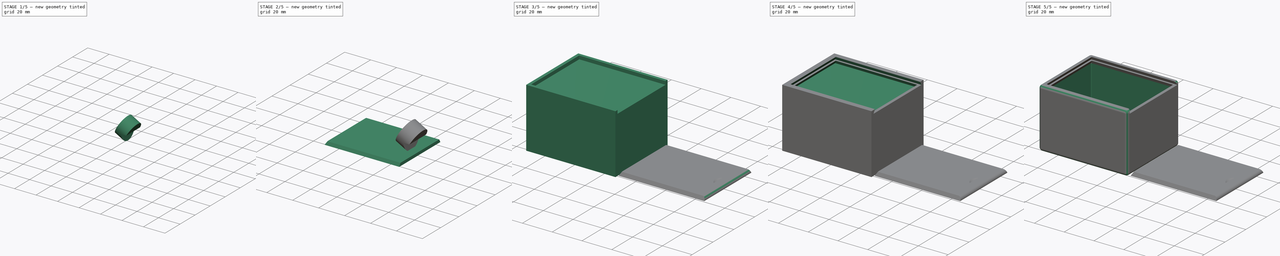
[diagram: build sequence overview — one tinted view per stage of 5, left to right]
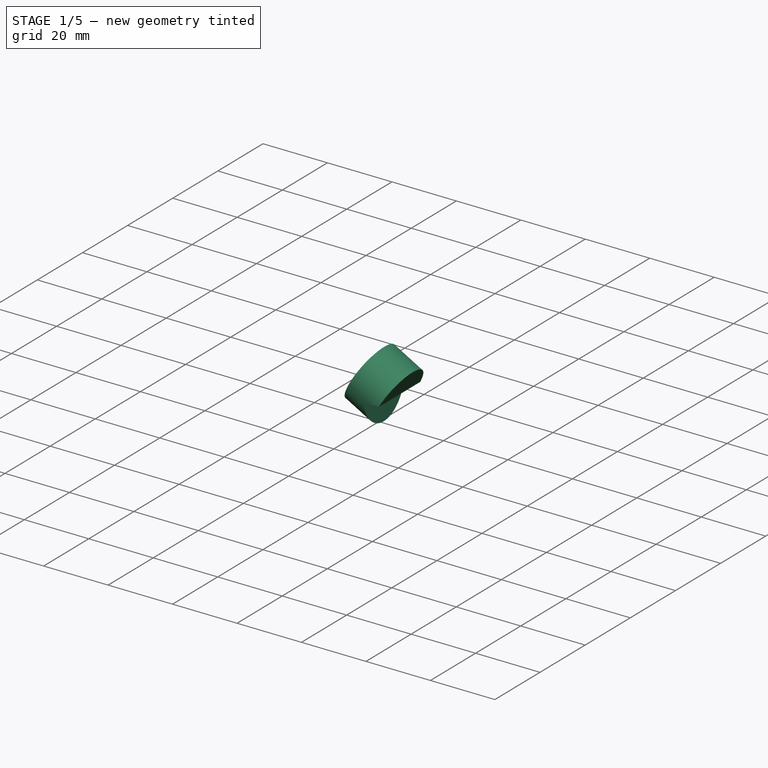
[diagram: stage 1 of 5 — iso view after this stage's code; geometry added in this stage tinted green]
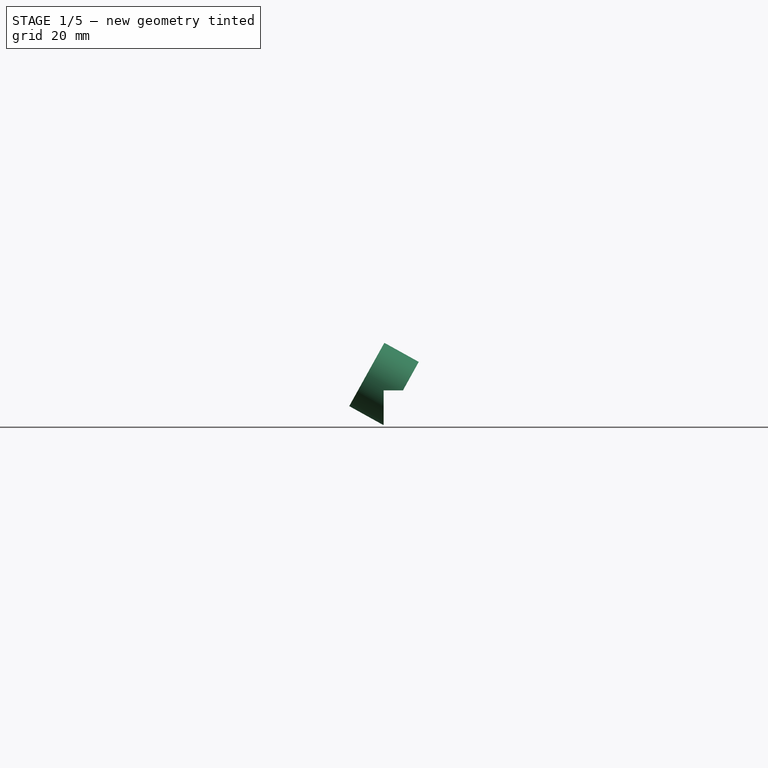
[diagram: stage 1 of 5 — front view after this stage's code; geometry added in this stage tinted green]
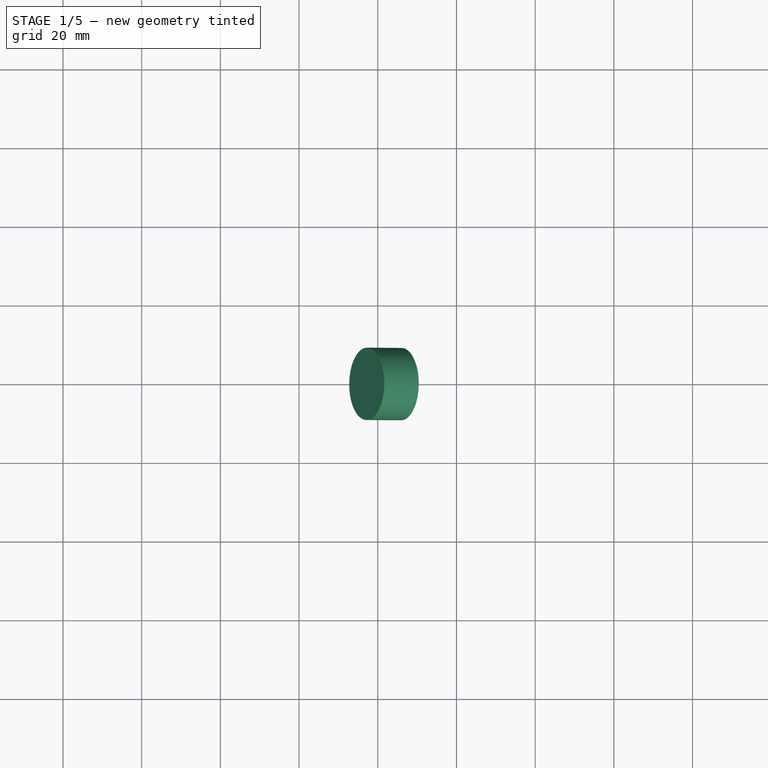
[diagram: stage 1 of 5 — top view after this stage's code; geometry added in this stage tinted green]
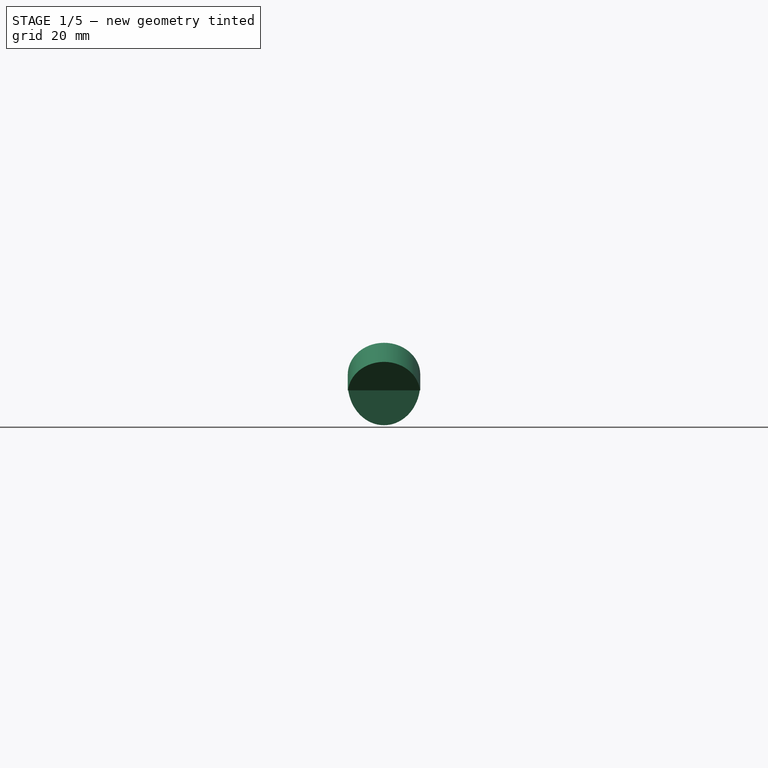
[diagram: stage 1 of 5 — right view after this stage's code; geometry added in this stage tinted green]
FCSTD DOCUMENT  (FreeCAD 0.19R24267 +99 (Git))
Label: MinimalSlidingBoxWithInsideOverhangs
License: All rights reserved
LicenseURL: http://en.wikipedia.org/wiki/All_rights_reserved
objects: Sketcher::SketchObject×6, PartDesign::Fillet×4, PartDesign::Pocket×3, PartDesign::Draft×3, PartDesign::Pad×2, PartDesign::Body×2, Part::Cut×2, Spreadsheet::Sheet×1, Part::Cylinder×1, Part::Box×1
note: 36 computed .brp shape members not serialized (recipe doc carries the construction recipe); baked Part::Feature solids carry a one-line shape summary decoded from their .brp

FEATURE [PartDesign::Body] Body001  label="LidBody"
  Group = -> [Sketch004,Pad001,Draft002,Fillet001,Fillet003]
  Origin = -> Origin001
  Tip = -> Fillet003
FEATURE [Part::Cylinder] Cylinder
  Angle = 360
  AttacherType = Attacher::AttachEngine3D
  Height = 10
  Placement = pos=(85.9536,0,9.2) rot=(0,-1,0;1.06465rad)
  Radius = 9.2
  expr: .Placement.Base.z = 4 * (Spreadsheet.thinWall + Spreadsheet.maxSliderGap)
  expr: Radius = 4 * (Spreadsheet.thinWall + Spreadsheet.maxSliderGap)
  expr: .Placement.Base.x = Spreadsheet.boxX / 2 + Spreadsheet.maxSliderGap + Spreadsheet.boxX - Spreadsheet.thinWall - Spreadsheet.maxSliderGap / cos(Spreadsheet.overhangAngle) - Spreadsheet.thinWall
FEATURE [Part::Box] Box  label="Cube"
  AttacherType = Attacher::AttachEngine3D
  Height = 10
  Length = 10
  Placement = pos=(81.4933,-9.2,0) rot=(0,0,1;0rad)
  Width = 18.4
  expr: .Placement.Base.x = Spreadsheet.boxX / 2 + Spreadsheet.maxSliderGap + Spreadsheet.boxX - Spreadsheet.thinWall - Spreadsheet.maxSliderGap / cos(Spreadsheet.overhangAngle) - Spreadsheet.thinWall - cos(61) * 4 * (Spreadsheet.thinWall + Spreadsheet.maxSliderGap)
  expr: .Placement.Base.y = -4 * (Spreadsheet.thinWall + Spreadsheet.maxSliderGap)
  expr: Width = 2 * 4 * (Spreadsheet.thinWall + Spreadsheet.maxSliderGap)
FEATURE [Part::Cut] Cut
  Base = -> Cylinder
  Tool = -> Box
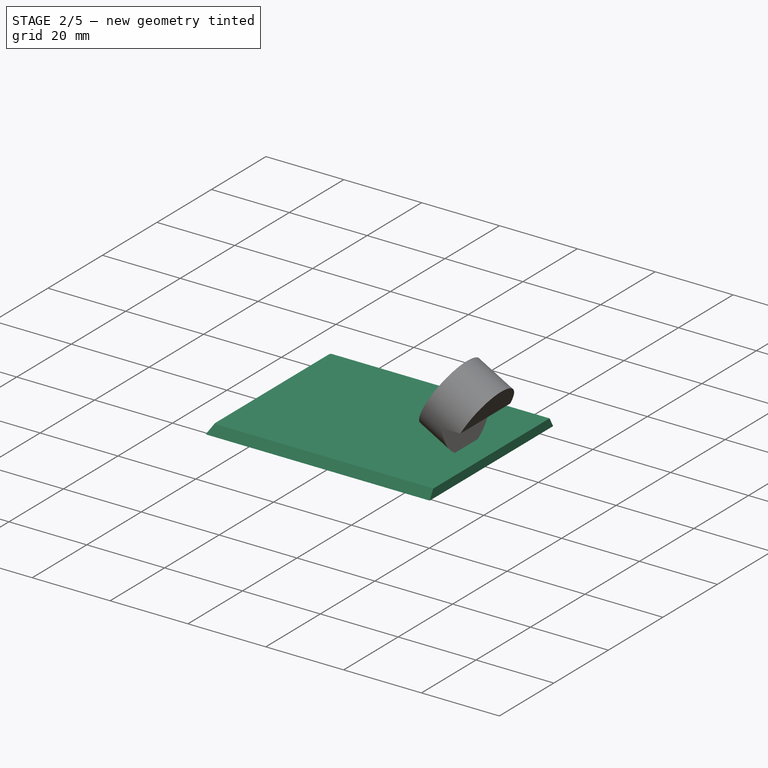
[diagram: stage 2 of 5 — iso view after this stage's code; geometry added in this stage tinted green]
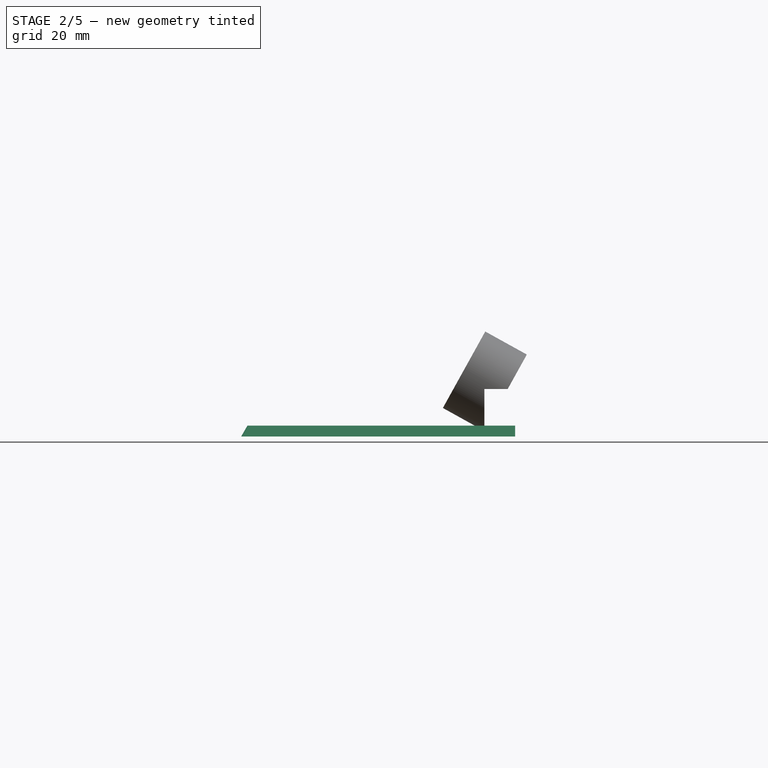
[diagram: stage 2 of 5 — front view after this stage's code; geometry added in this stage tinted green]
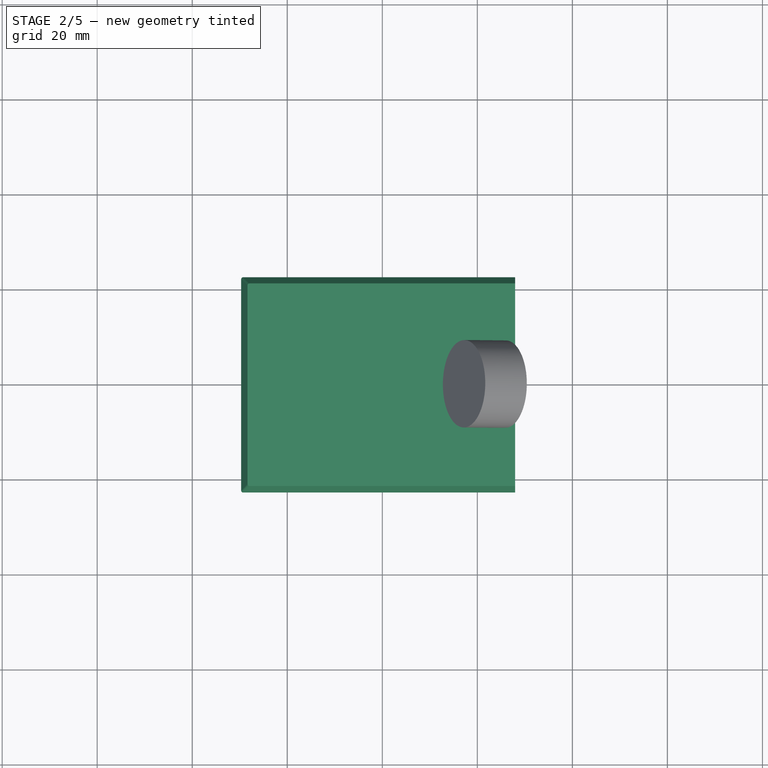
[diagram: stage 2 of 5 — top view after this stage's code; geometry added in this stage tinted green]
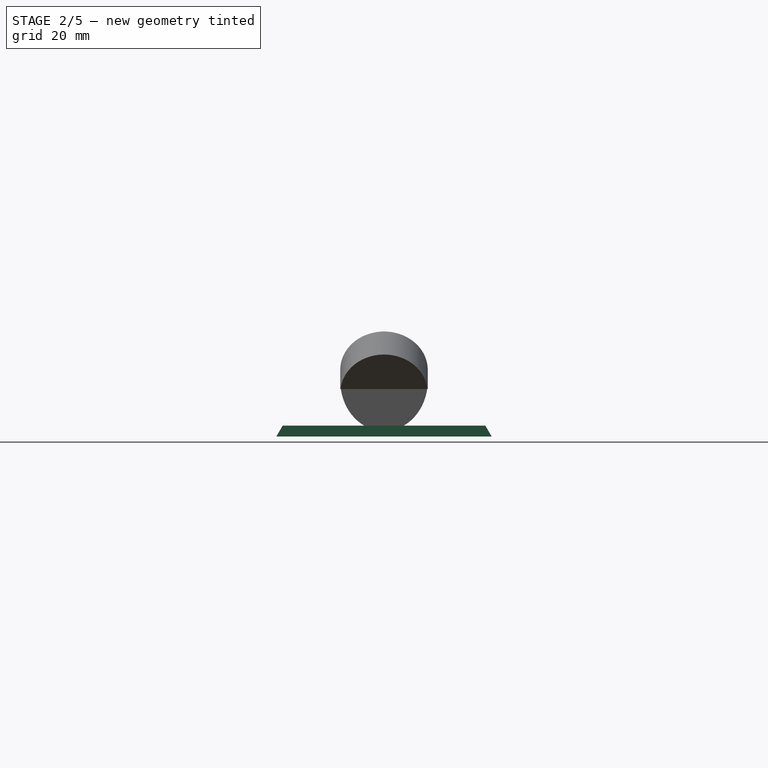
[diagram: stage 2 of 5 — right view after this stage's code; geometry added in this stage tinted green]
FEATURE [Sketcher::SketchObject] Sketch004  label="SliderSketch"
  FullyConstrained = true
  MapMode = 5
  Support = -> [XY_Plane001]
  expr: Constraints[2] = Spreadsheet.boxX / 2 + Spreadsheet.maxSliderGap
  expr: Constraints[12] = Spreadsheet.boxY - 2 * Spreadsheet.thinWall - 2 * Spreadsheet.maxSliderGap / cos(Spreadsheet.overhangAngle)
  expr: Constraints[13] = Spreadsheet.boxX - Spreadsheet.thinWall - Spreadsheet.maxSliderGap / cos(Spreadsheet.overhangAngle)
  sketch-geometry (5):
    g0: LineSegment StartX=0 StartY=0 StartZ=0 EndX=30.3 EndY=0 EndZ=0
    g1: LineSegment StartX=30.3 StartY=22.6536 StartZ=0 EndX=87.9536 EndY=22.6536 EndZ=0
    g2: LineSegment StartX=87.9536 StartY=22.6536 StartZ=0 EndX=87.9536 EndY=-22.6536 EndZ=0
    g3: LineSegment StartX=87.9536 StartY=-22.6536 StartZ=0 EndX=30.3 EndY=-22.6536 EndZ=0
    g4: LineSegment StartX=30.3 StartY=-22.6536 StartZ=0 EndX=30.3 EndY=22.6536 EndZ=0
  constraints (14):
    c: Coincident(g0,g-1)
    c: Horizontal(g0)
    c: DistanceX(g0,g0) = 30.3
    c: Coincident(g1,g2)
    c: Coincident(g2,g3)
    c: Coincident(g3,g4)
    c: Coincident(g4,g1)
    c: Horizontal(g1)
    c: Horizontal(g3)
    c: Vertical(g2)
    c: Vertical(g4)
    c: Symmetric(g1,g3,g0)
    c: DistanceY(g4,g4) = 45.3072
    c: DistanceX(g1,g1) = 57.6536
FEATURE [PartDesign::Pad] Pad001  label="SliderPad"
  Direction = (1,1,1)
  Length = 2.3
  Length2 = 100
  Profile = -> Sketch004
  Type = 0
  expr: Length = Spreadsheet.thinWall + Spreadsheet.maxSliderGap
FEATURE [PartDesign::Draft] Draft002  label="DraftSliderSides"
  Angle = 30
  Base = -> Pad001 [Face4,Face1,Face3]
  BaseFeature = -> Pad001
  NeutralPlane = -> Pad001 [Face5]
  Reversed = true
  SupportTransform = false
  expr: Angle = Spreadsheet.overhangAngle
FEATURE [PartDesign::Fillet] Fillet001  label="SliderAntiThreadingFillet"
  Base = -> Draft002 [Edge1,Edge8]
  BaseFeature = -> Draft002
  Radius = 0.5
  SupportTransform = false
  expr: Radius = Spreadsheet.antiThreadingRadius
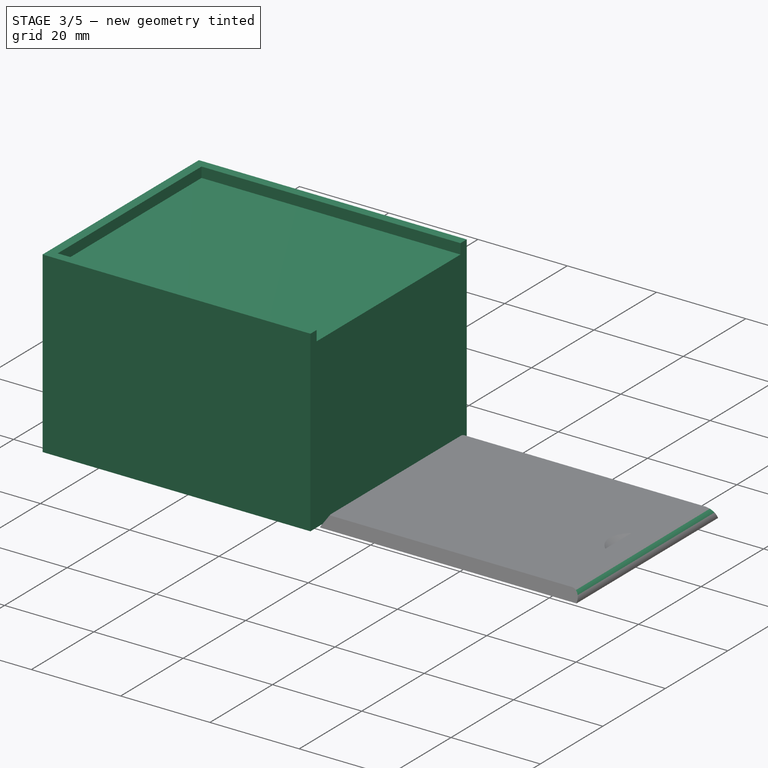
[diagram: stage 3 of 5 — iso view after this stage's code; geometry added in this stage tinted green]
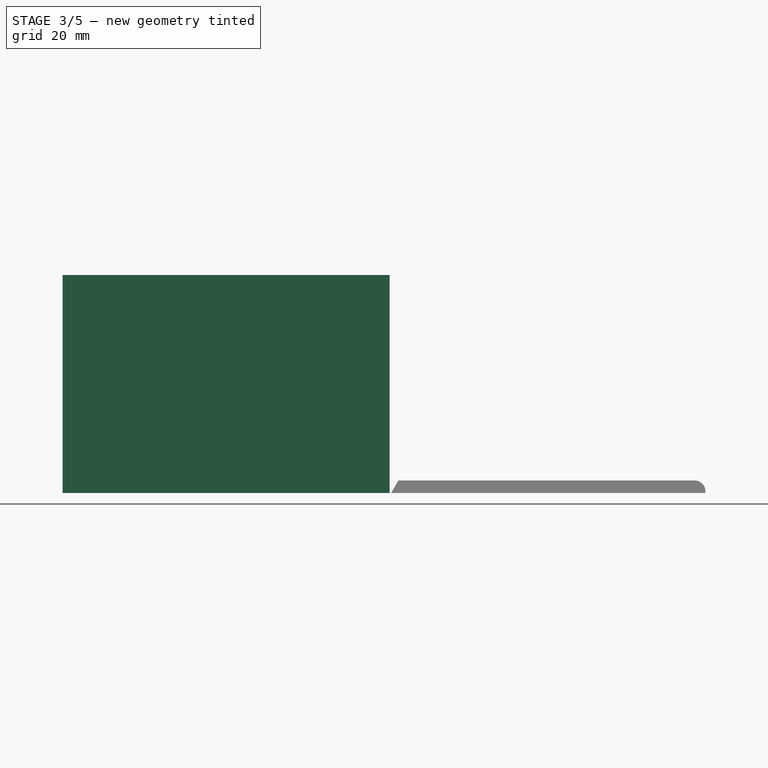
[diagram: stage 3 of 5 — front view after this stage's code; geometry added in this stage tinted green]
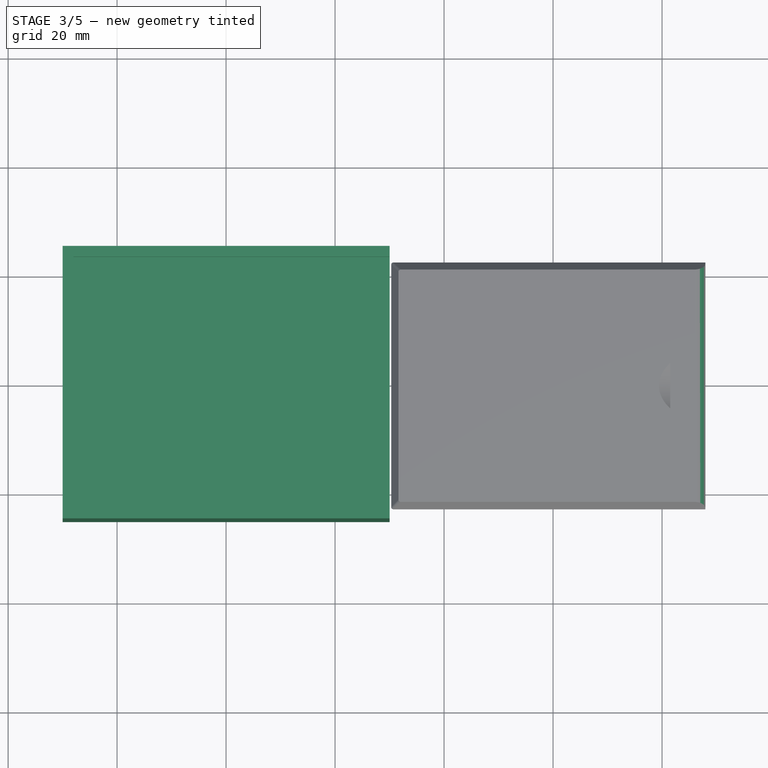
[diagram: stage 3 of 5 — top view after this stage's code; geometry added in this stage tinted green]
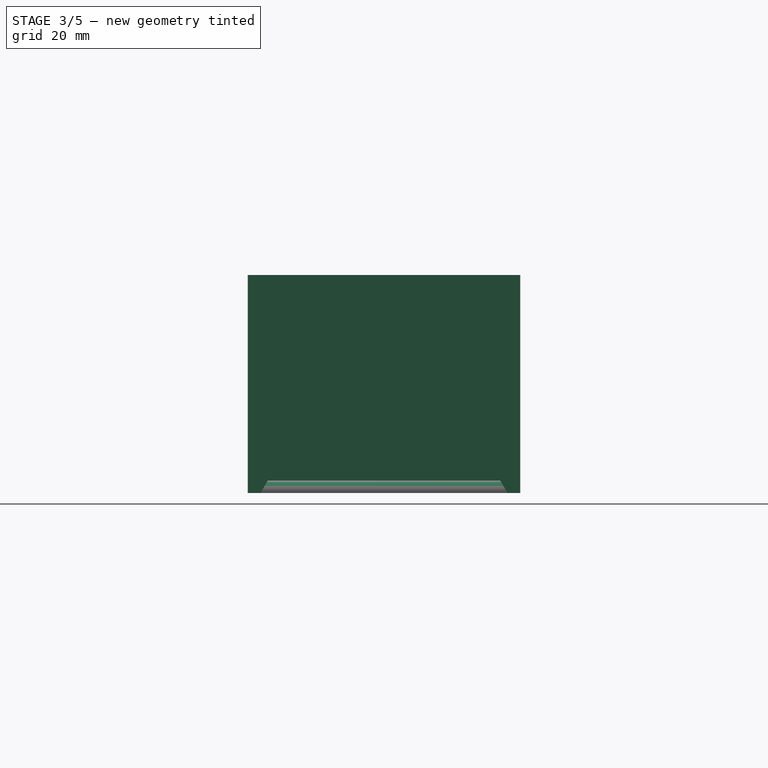
[diagram: stage 3 of 5 — right view after this stage's code; geometry added in this stage tinted green]
FEATURE [Sketcher::SketchObject] Sketch  label="BaseSketch"
  FullyConstrained = true
  MapMode = 5
  Support = -> [XY_Plane]
  expr: Constraints[8] = Spreadsheet.boxX
  expr: Constraints[9] = Spreadsheet.boxY
  sketch-geometry (4):
    g0: LineSegment StartX=-30 StartY=25 StartZ=0 EndX=30 EndY=25 EndZ=0
    g1: LineSegment StartX=30 StartY=25 StartZ=0 EndX=30 EndY=-25 EndZ=0
    g2: LineSegment StartX=30 StartY=-25 StartZ=0 EndX=-30 EndY=-25 EndZ=0
    g3: LineSegment StartX=-30 StartY=-25 StartZ=0 EndX=-30 EndY=25 EndZ=0
  constraints (11):
    c: Coincident(g0,g1)
    c: Coincident(g1,g2)
    c: Coincident(g2,g3)
    c: Coincident(g3,g0)
    c: Horizontal(g0)
    c: Horizontal(g2)
    c: Vertical(g1)
    c: Vertical(g3)
    c: DistanceX(g0,g0) = 60
    c: DistanceY(g3,g3) = 50
    c: Symmetric(g0,g1,g-1)
FEATURE [Spreadsheet::Sheet] Spreadsheet
  cells = A1=Alias; B1=Value; A2=boxX; B2(boxX)=60; A3=boxY; B3(boxY)=50; A4=boxZ; B4(boxZ)=40; A5=thinWall; B5(thinWall)=2; A6=maxSliderGap; B6(maxSliderGap)=0.3; A7=antiThreadingRadius; B7(antiThreadingRadius)=0.5; A8=overhangAngle; B8(overhangAngle)=30
FEATURE [PartDesign::Pad] Pad  label="Base"
  Direction = (1,1,1)
  Length = 40
  Length2 = 100
  Profile = -> Sketch
  Type = 0
  expr: Length = Spreadsheet.boxZ
FEATURE [Sketcher::SketchObject] Sketch001  label="LidPocketSketch"
  ExternalGeometry = -> [Pad]
  FullyConstrained = true
  MapMode = 5
  Placement = pos=(30,0,0) rot=(0.57735,0.57735,0.57735;2.0944rad)
  Support = -> [Pad]
  expr: Constraints[11] = Spreadsheet.thinWall + Spreadsheet.maxSliderGap
  expr: Constraints[9] = Spreadsheet.thinWall
  expr: Constraints[10] = Spreadsheet.thinWall
  sketch-geometry (4):
    g0: LineSegment StartX=-23 StartY=40 StartZ=0 EndX=23 EndY=40 EndZ=0
    g1: LineSegment StartX=23 StartY=40 StartZ=0 EndX=23 EndY=37.7 EndZ=0
    g2: LineSegment StartX=23 StartY=37.7 StartZ=0 EndX=-23 EndY=37.7 EndZ=0
    g3: LineSegment StartX=-23 StartY=37.7 StartZ=0 EndX=-23 EndY=40 EndZ=0
  constraints (12):
    c: Coincident(g0,g1)
    c: Coincident(g1,g2)
    c: Coincident(g2,g3)
    c: Coincident(g3,g0)
    c: Horizontal(g0)
    c: Horizontal(g2)
    c: Vertical(g1)
    c: Vertical(g3)
    c: PointOnObject(g0,g-3)
    c: DistanceX(g-3,g0) = 2
    c: DistanceX(g0,g-3) = 2
    c: DistanceY(g2,g0) = 2.3
FEATURE [PartDesign::Pocket] Pocket  label="LidPocket"
  BaseFeature = -> Pad
  Length = 58
  Length2 = 100
  Profile = -> Sketch001
  Type = 0
  expr: Length = Spreadsheet.boxX - Spreadsheet.thinWall
FEATURE [PartDesign::Body] Body  label="BoxBody"
  Group = -> [Sketch,Pad,Sketch001,Pocket,Draft,Sketch002,Pocket001,Draft001,Sketch003,Pocket002,Fillet,Sketch005,Fillet002]
  Origin = -> Origin
  Tip = -> Fillet002
FEATURE [PartDesign::Fillet] Fillet003  label="SliderFillet"
  Base = -> Fillet001 [Edge13]
  BaseFeature = -> Fillet001
  Radius = 1.98
  SupportTransform = false
  expr: Radius = Spreadsheet.thinWall * 0.99
FEATURE [Part::Cut] Cut001  label="FinishedSliderCut"
  Base = -> Body001
  Tool = -> Cut
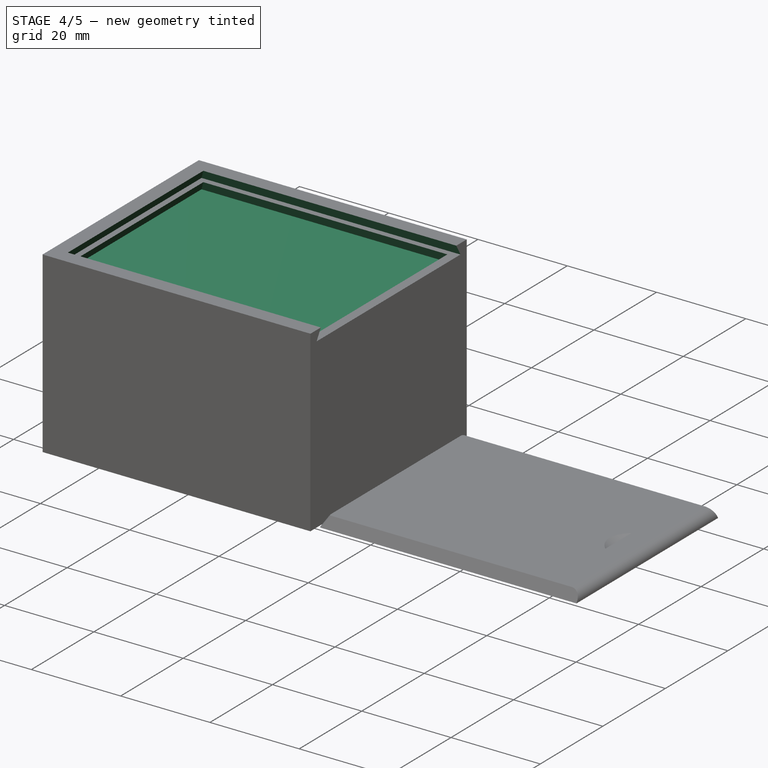
[diagram: stage 4 of 5 — iso view after this stage's code; geometry added in this stage tinted green]
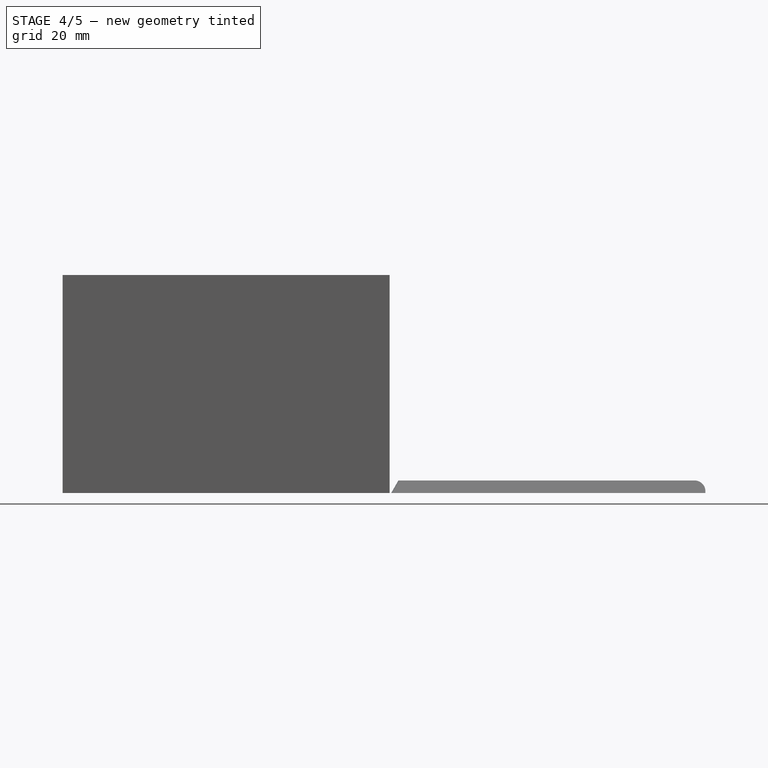
[diagram: stage 4 of 5 — front view after this stage's code; geometry added in this stage tinted green]
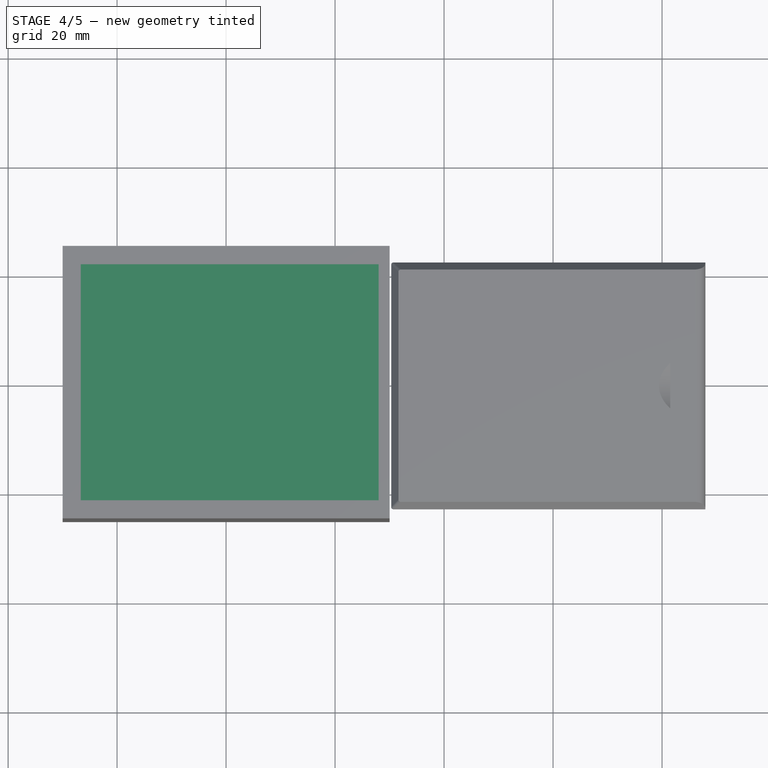
[diagram: stage 4 of 5 — top view after this stage's code; geometry added in this stage tinted green]
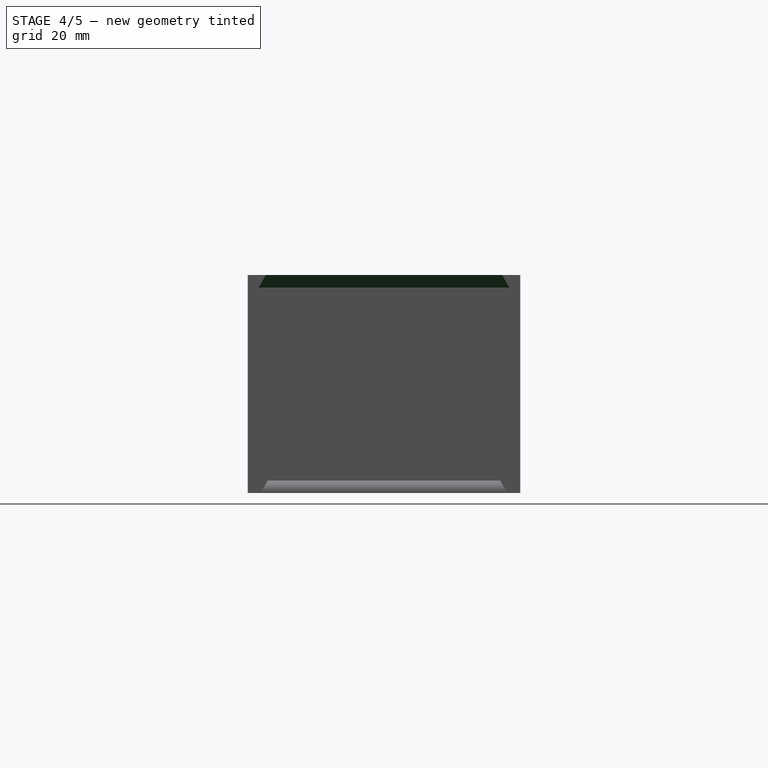
[diagram: stage 4 of 5 — right view after this stage's code; geometry added in this stage tinted green]
FEATURE [PartDesign::Draft] Draft  label="LidPocketDraft"
  Angle = 30
  Base = -> Pocket [Face9,Face10,Face7]
  BaseFeature = -> Pocket
  NeutralPlane = -> Pocket [Face8]
  Reversed = true
  SupportTransform = false
  expr: Angle = Spreadsheet.overhangAngle
FEATURE [Sketcher::SketchObject] Sketch002  label="LidPocketVerticalSketch"
  ExternalGeometry = -> [Draft]
  FullyConstrained = true
  MapMode = 5
  Placement = pos=(0,0,37.7) rot=(0,0,1;0rad)
  Support = -> [Draft]
  expr: Constraints[10] = Spreadsheet.thinWall
  sketch-geometry (4):
    g0: LineSegment StartX=-26.6721 StartY=21.6721 StartZ=0 EndX=28 EndY=21.6721 EndZ=0
    g1: LineSegment StartX=28 StartY=21.6721 StartZ=0 EndX=28 EndY=-21.6721 EndZ=0
    g2: LineSegment StartX=28 StartY=-21.6721 StartZ=0 EndX=-26.6721 EndY=-21.6721 EndZ=0
    g3: LineSegment StartX=-26.6721 StartY=-21.6721 StartZ=0 EndX=-26.6721 EndY=21.6721 EndZ=0
  constraints (11):
    c: Coincident(g0,g1)
    c: Coincident(g1,g2)
    c: Coincident(g2,g3)
    c: Coincident(g3,g0)
    c: Horizontal(g0)
    c: Horizontal(g2)
    c: Vertical(g1)
    c: Vertical(g3)
    c: Coincident(g0,g-3)
    c: PointOnObject(g1,g-4)
    c: DistanceX(g1,g-4) = 2
FEATURE [PartDesign::Pocket] Pocket001  label="LidPocketVertical"
  BaseFeature = -> Draft
  Length = 2.3
  Length2 = 100
  Profile = -> Sketch002
  Type = 0
  expr: Length = Spreadsheet.thinWall + Spreadsheet.maxSliderGap
FEATURE [PartDesign::Draft] Draft001  label="DraftBelowLid"
  Angle = 30
  Base = -> Pocket001 [Face14,Face11,Face12]
  BaseFeature = -> Pocket001
  NeutralPlane = -> Pocket001 [Face8]
  Reversed = true
  SupportTransform = false
  expr: Angle = Spreadsheet.overhangAngle
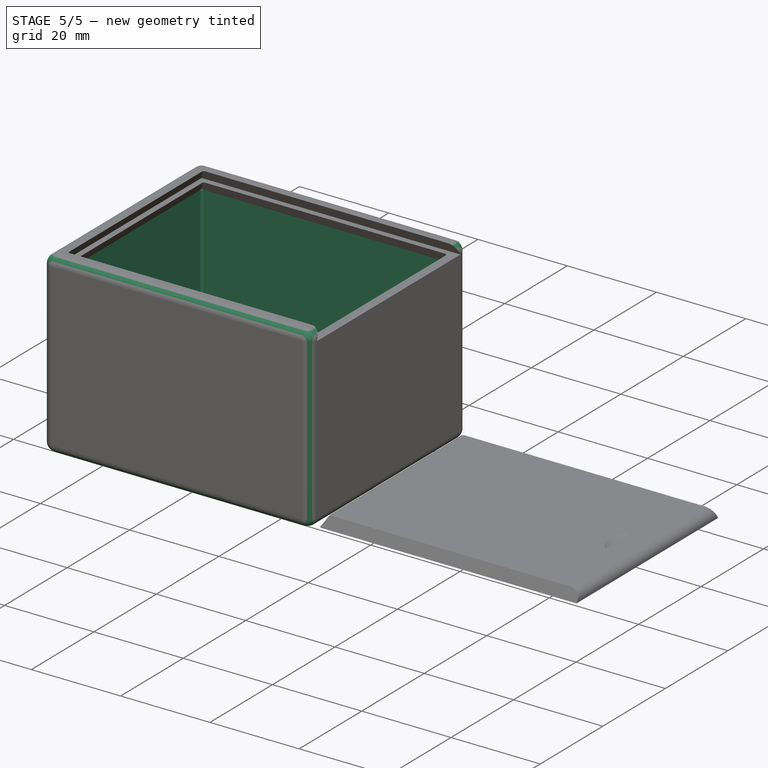
[diagram: stage 5 of 5 — iso view after this stage's code; geometry added in this stage tinted green]
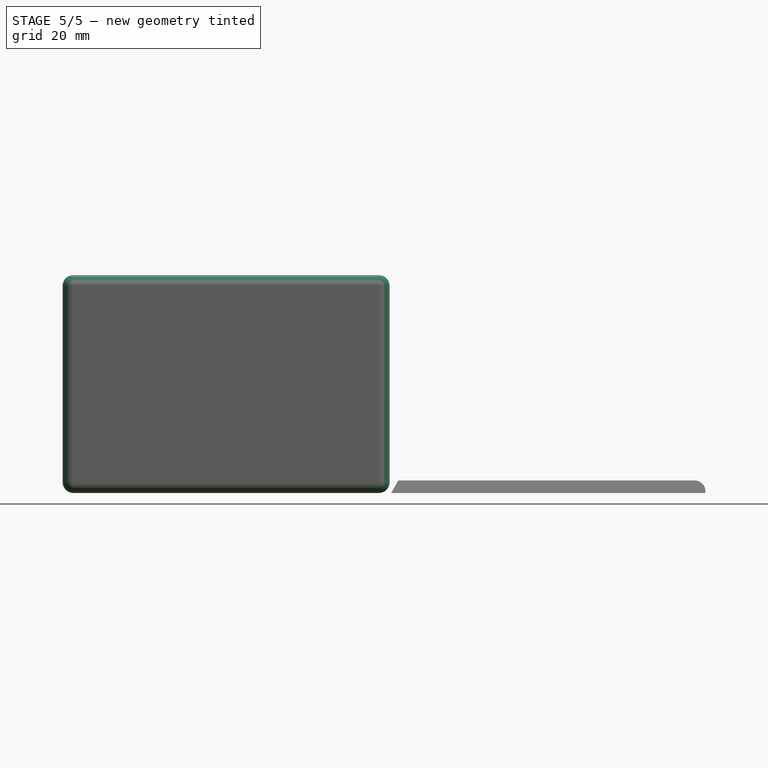
[diagram: stage 5 of 5 — front view after this stage's code; geometry added in this stage tinted green]
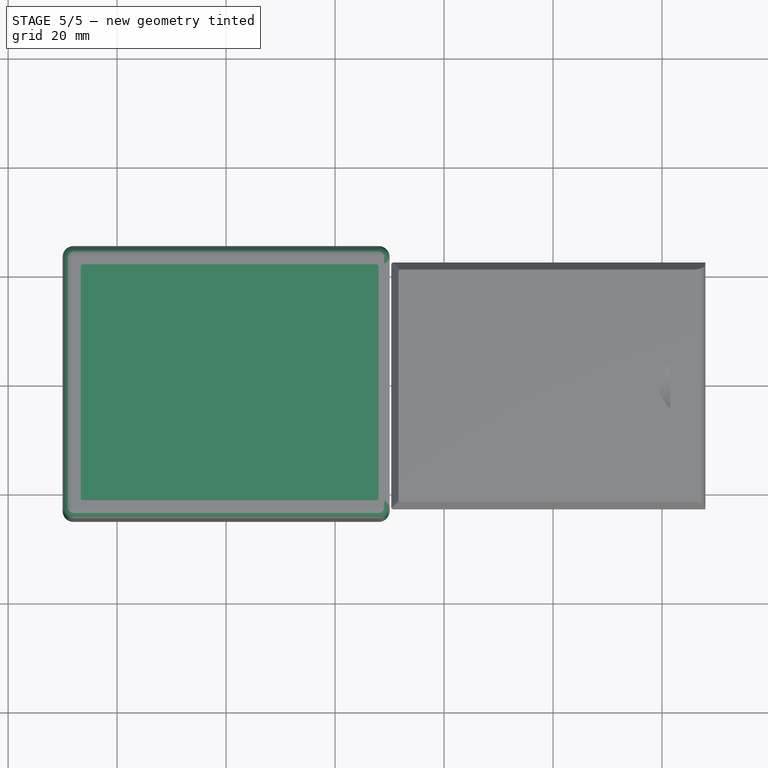
[diagram: stage 5 of 5 — top view after this stage's code; geometry added in this stage tinted green]
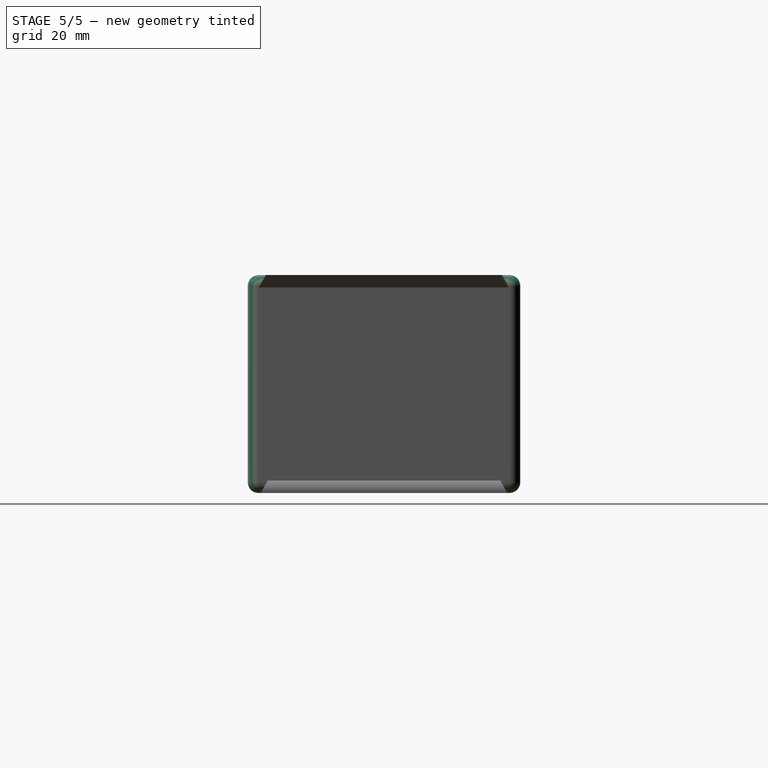
[diagram: stage 5 of 5 — right view after this stage's code; geometry added in this stage tinted green]
FEATURE [Sketcher::SketchObject] Sketch003  label="MainPocketSketch"
  ExternalGeometry = -> [Draft001]
  FullyConstrained = true
  MapMode = 5
  Placement = pos=(0,0,35.4) rot=(0,0,1;0rad)
  Support = -> [Draft001]
  expr: Constraints[8] = Spreadsheet.thinWall
  expr: Constraints[9] = Spreadsheet.thinWall
  expr: Constraints[10] = Spreadsheet.thinWall
  expr: Constraints[11] = Spreadsheet.thinWall
  sketch-geometry (4):
    g0: LineSegment StartX=-28 StartY=23 StartZ=0 EndX=28 EndY=23 EndZ=0
    g1: LineSegment StartX=28 StartY=23 StartZ=0 EndX=28 EndY=-23 EndZ=0
    g2: LineSegment StartX=28 StartY=-23 StartZ=0 EndX=-28 EndY=-23 EndZ=0
    g3: LineSegment StartX=-28 StartY=-23 StartZ=0 EndX=-28 EndY=23 EndZ=0
  constraints (12):
    c: Coincident(g0,g1)
    c: Coincident(g1,g2)
    c: Coincident(g2,g3)
    c: Coincident(g3,g0)
    c: Horizontal(g0)
    c: Horizontal(g2)
    c: Vertical(g1)
    c: Vertical(g3)
    c: DistanceX(g-3,g0) = 2
    c: DistanceY(g0,g-3) = 2
    c: DistanceX(g1,g-4) = 2
    c: DistanceY(g-4,g1) = 2
FEATURE [PartDesign::Pocket] Pocket002  label="MainPocket"
  BaseFeature = -> Draft001
  Length = 33.4
  Length2 = 100
  Profile = -> Sketch003
  Type = 0
  expr: Length = Spreadsheet.boxZ - 3 * Spreadsheet.thinWall - 2 * Spreadsheet.maxSliderGap
FEATURE [Sketcher::SketchObject] Sketch005  label="SlicedViewSketch"
  ExternalGeometry = -> [Pocket002]
  FullyConstrained = true
  MapMode = 5
  Placement = pos=(0,0,40) rot=(0,0,1;0rad)
  Support = -> [Pocket002]
  sketch-geometry (4):
    g0: LineSegment StartX=0 StartY=25 StartZ=0 EndX=30 EndY=25 EndZ=0
    g1: LineSegment StartX=30 StartY=25 StartZ=0 EndX=30 EndY=-25 EndZ=0
    g2: LineSegment StartX=30 StartY=-25 StartZ=0 EndX=0 EndY=-25 EndZ=0
    g3: LineSegment StartX=0 StartY=-25 StartZ=0 EndX=0 EndY=25 EndZ=0
  constraints (11):
    c: Coincident(g0,g1)
    c: Coincident(g1,g2)
    c: Coincident(g2,g3)
    c: Coincident(g3,g0)
    c: Horizontal(g0)
    c: Horizontal(g2)
    c: Vertical(g1)
    c: Vertical(g3)
    c: PointOnObject(g0,g-3)
    c: Coincident(g1,g-4)
    c: DistanceX(g0,g-1) = 0
FEATURE [PartDesign::Fillet] Fillet  label="AntiThreadingFillet"
  Base = -> Pocket002 [Edge42,Edge34,Edge28,Edge30,Edge38,Edge21,Edge29,Edge37,Edge32,Edge40]
  BaseFeature = -> Pocket002
  Radius = 0.5
  SupportTransform = false
  expr: Radius = Spreadsheet.antiThreadingRadius
FEATURE [PartDesign::Fillet] Fillet002  label="BodyFillet"
  Base = -> Fillet [Edge10,Edge3,Edge5,Edge17,Edge20,Edge23,Edge16,Edge9,Edge7,Edge28,Edge30,Edge27,Edge24]
  BaseFeature = -> Fillet
  Radius = 2
  SupportTransform = false
  expr: Radius = Spreadsheet.thinWall
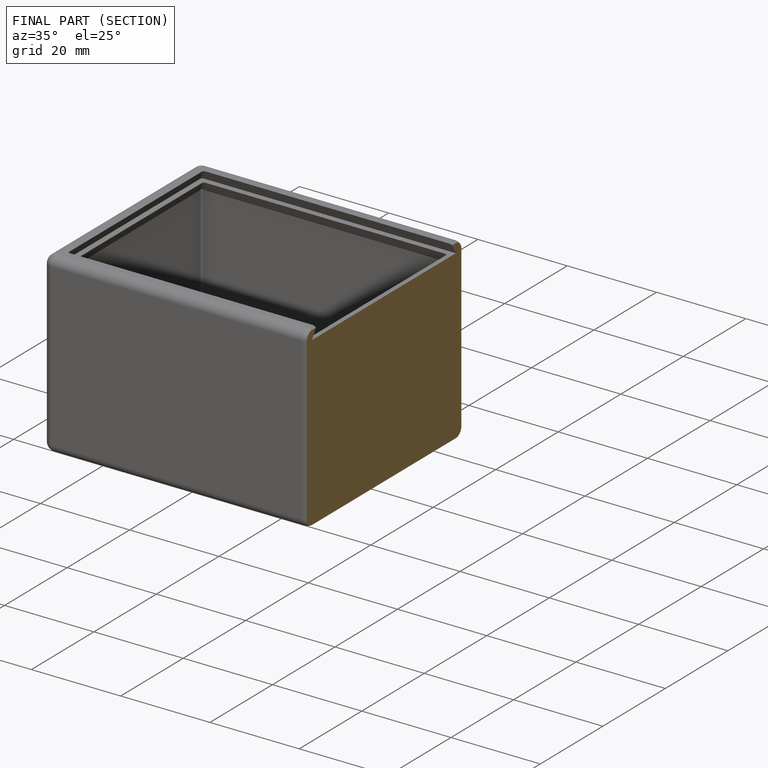
[diagram: finished part — half-section view (interior)]
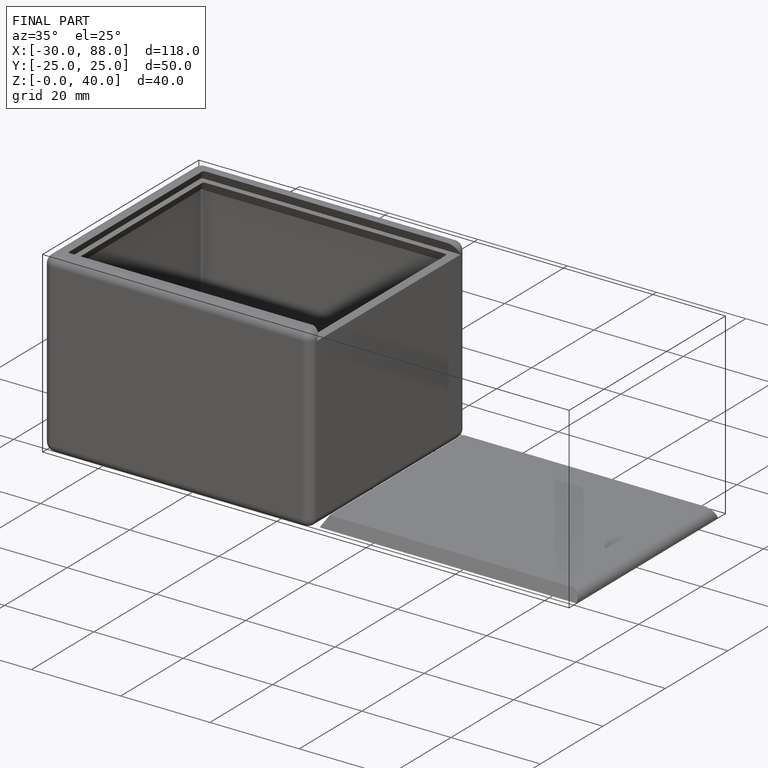
[diagram: finished part — iso view with bounding-box wireframe]
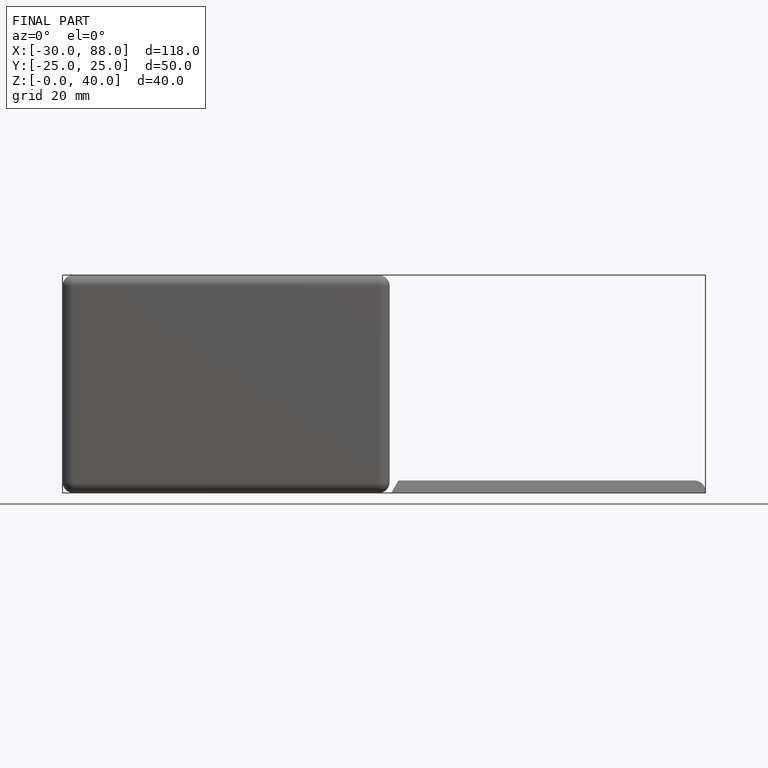
[diagram: finished part — front view with bounding-box wireframe]
